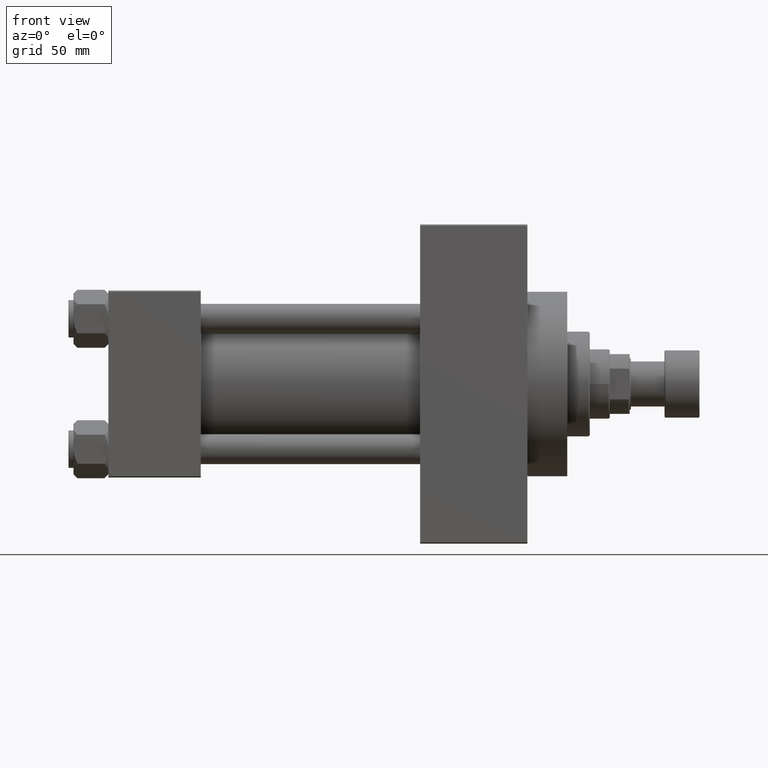
[diagram: clean part render]
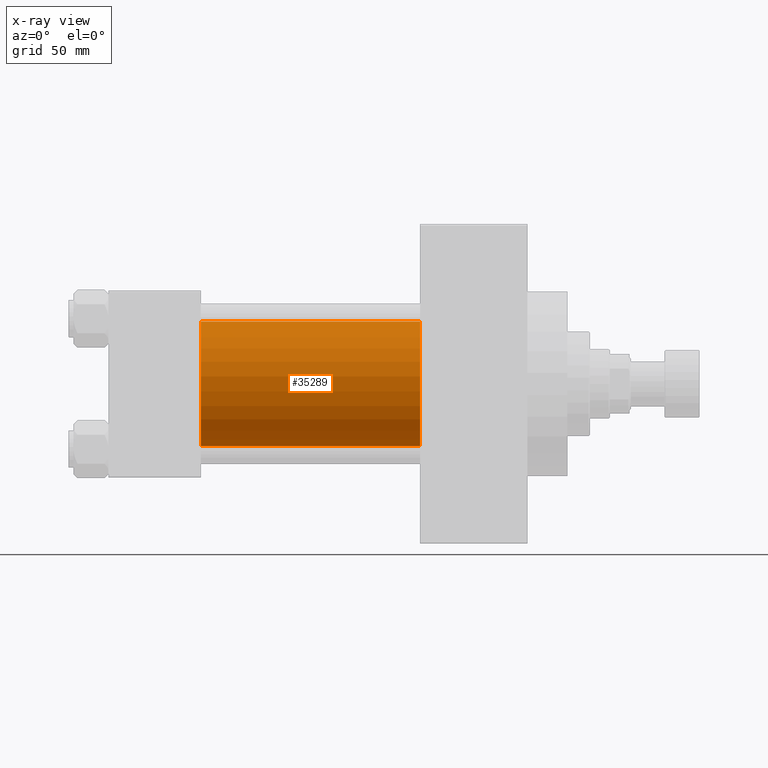
[diagram: x-ray — body ghosted, one internal face saturated and labeled with its STEP entity id]
A machine part, front view, then the same camera in x-ray: the body is ghosted and one INTERNAL B-rep face — a face not visible from any outside direction — is saturated and labeled: STEP entity #35289.
In plain terms, the highlighted cylindrical surface (partial cylindrical patch) has radius 25 mm, axis along (-1, -0, -0).
Its self-contained STEP definition (entity closure, byte-faithful):
#1213 = CARTESIAN_POINT ( 'NONE',  ( 37.00000000000000000, 4.595317839031724996E-16, -25.00000000000000000 ) ) ;
#6765 = VERTEX_POINT ( 'NONE', #8583 ) ;
#7425 = VERTEX_POINT ( 'NONE', #1213 ) ;
#8583 = CARTESIAN_POINT ( 'NONE',  ( 37.00000000000000000, -2.602085213965210642E-15, 25.00000000000000000 ) ) ;
#8815 = VECTOR ( 'NONE', #39040, 1000.000000000000000 ) ;
#9570 = EDGE_CURVE ( 'NONE', #6765, #7425, #12355, .T. ) ;
#10640 = DIRECTION ( 'NONE',  ( 1.000000000000000000, 0.000000000000000000, 0.000000000000000000 ) ) ;
#11482 = AXIS2_PLACEMENT_3D ( 'NONE', #21002, #14007, #43404 ) ;
#12355 = CIRCLE ( 'NONE', #21590, 25.00000000000000000 ) ;
#13861 = AXIS2_PLACEMENT_3D ( 'NONE', #29039, #25440, #37247 ) ;
#14007 = DIRECTION ( 'NONE',  ( 1.000000000000000000, 0.000000000000000000, 0.000000000000000000 ) ) ;
#15835 = LINE ( 'NONE', #19217, #27857 ) ;
#17615 = ORIENTED_EDGE ( 'NONE', *, *, #18873, .F. ) ;
#17706 = VERTEX_POINT ( 'NONE', #20480 ) ;
#18595 = DIRECTION ( 'NONE',  ( 0.000000000000000000, 0.000000000000000000, -1.000000000000000000 ) ) ;
#18873 = EDGE_CURVE ( 'NONE', #17706, #6765, #24346, .T. ) ;
#19217 = CARTESIAN_POINT ( 'NONE',  ( 125.0000000000000000, 4.595317839031724996E-16, -25.00000000000000000 ) ) ;
#20403 = EDGE_LOOP ( 'NONE', ( #30769, #35521, #28186, #17615 ) ) ;
#20480 = CARTESIAN_POINT ( 'NONE',  ( 125.0000000000000000, -2.602085213965210642E-15, 25.00000000000000000 ) ) ;
#21002 = CARTESIAN_POINT ( 'NONE',  ( 125.0000000000000000, -2.602085213965210642E-15, 0.000000000000000000 ) ) ;
#21590 = AXIS2_PLACEMENT_3D ( 'NONE', #21739, #10640, #18595 ) ;
#21739 = CARTESIAN_POINT ( 'NONE',  ( 37.00000000000000000, -2.602085213965210642E-15, 0.000000000000000000 ) ) ;
#22311 = CARTESIAN_POINT ( 'NONE',  ( 125.0000000000000000, 4.595317839031724996E-16, -25.00000000000000000 ) ) ;
#24346 = LINE ( 'NONE', #35421, #8815 ) ;
#25440 = DIRECTION ( 'NONE',  ( -1.000000000000000000, -0.000000000000000000, -0.000000000000000000 ) ) ;
#27857 = VECTOR ( 'NONE', #33908, 1000.000000000000000 ) ;
#28186 = ORIENTED_EDGE ( 'NONE', *, *, #9570, .F. ) ;
#29039 = CARTESIAN_POINT ( 'NONE',  ( 125.0000000000000000, -2.602085213965210642E-15, 0.000000000000000000 ) ) ;
#30005 = CYLINDRICAL_SURFACE ( 'NONE', #13861, 25.00000000000000000 ) ;
#30769 = ORIENTED_EDGE ( 'NONE', *, *, #33720, .T. ) ;
#33720 = EDGE_CURVE ( 'NONE', #17706, #38111, #43788, .T. ) ;
#33908 = DIRECTION ( 'NONE',  ( -1.000000000000000000, -0.000000000000000000, -0.000000000000000000 ) ) ;
#35289 = ADVANCED_FACE ( 'NONE', ( #40382 ), #30005, .F. ) ;
#35421 = CARTESIAN_POINT ( 'NONE',  ( 125.0000000000000000, -2.602085213965210642E-15, 25.00000000000000000 ) ) ;
#35521 = ORIENTED_EDGE ( 'NONE', *, *, #45321, .T. ) ;
#37247 = DIRECTION ( 'NONE',  ( 0.000000000000000000, 0.000000000000000000, 1.000000000000000000 ) ) ;
#38111 = VERTEX_POINT ( 'NONE', #22311 ) ;
#39040 = DIRECTION ( 'NONE',  ( -1.000000000000000000, -0.000000000000000000, -0.000000000000000000 ) ) ;
#40382 = FACE_OUTER_BOUND ( 'NONE', #20403, .T. ) ;
#43404 = DIRECTION ( 'NONE',  ( 0.000000000000000000, 0.000000000000000000, -1.000000000000000000 ) ) ;
#43788 = CIRCLE ( 'NONE', #11482, 25.00000000000000000 ) ;
#45321 = EDGE_CURVE ( 'NONE', #38111, #7425, #15835, .T. ) ;